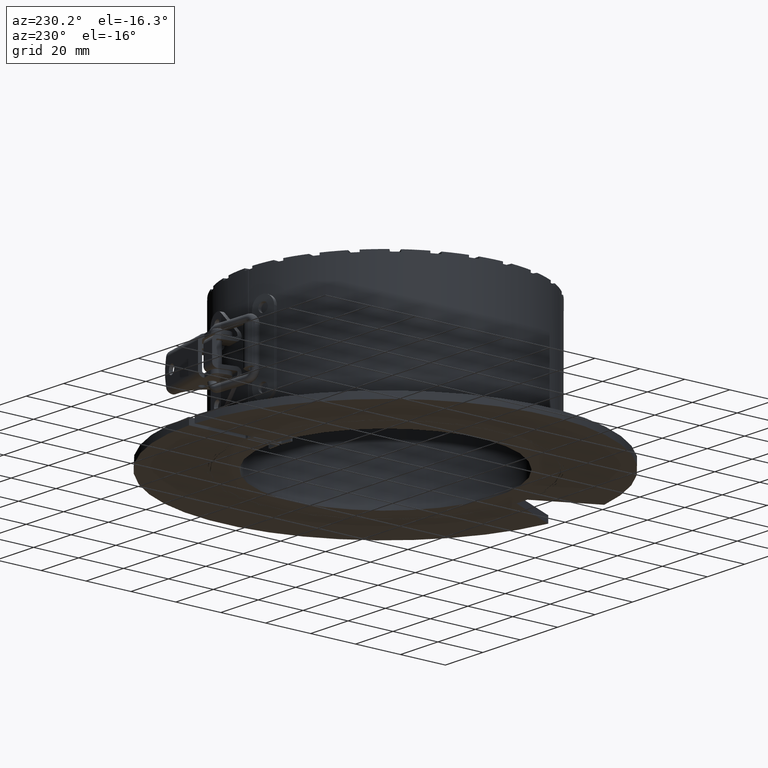
[diagram: clean part render]
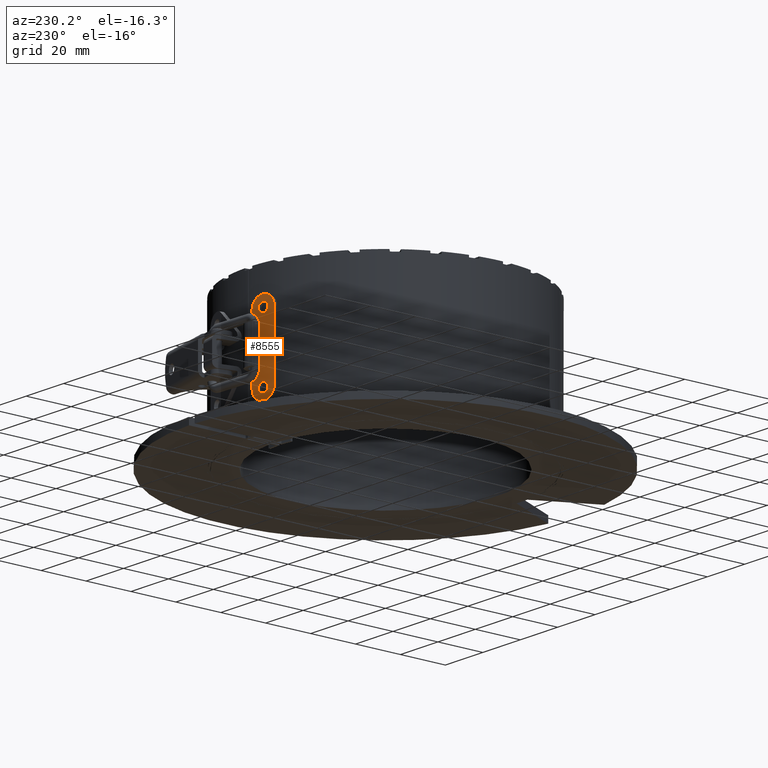
[diagram: same view with one face highlighted and labeled with its STEP entity id]
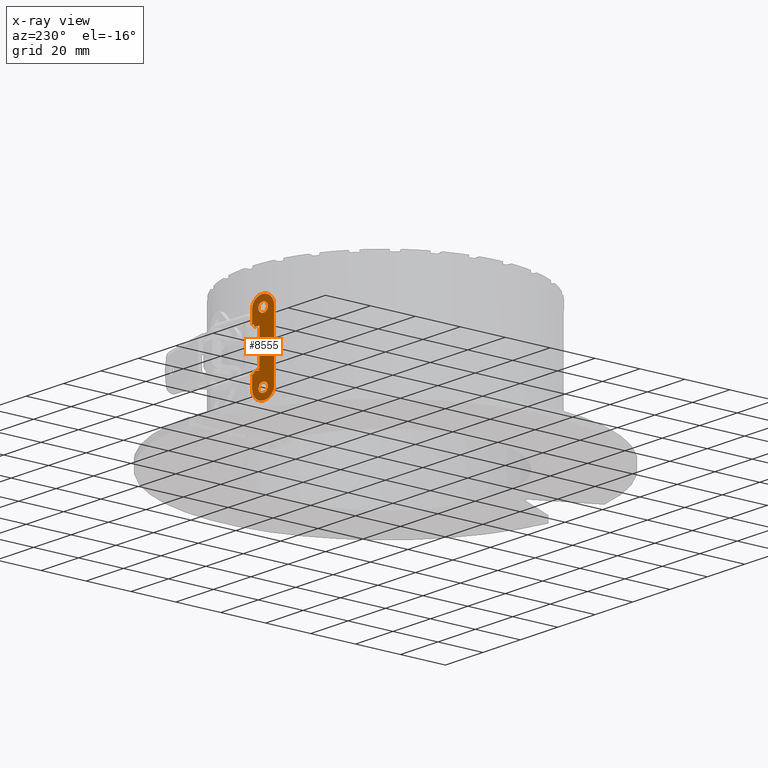
[diagram: x-ray of the same camera — body ghosted, the highlighted face saturated]
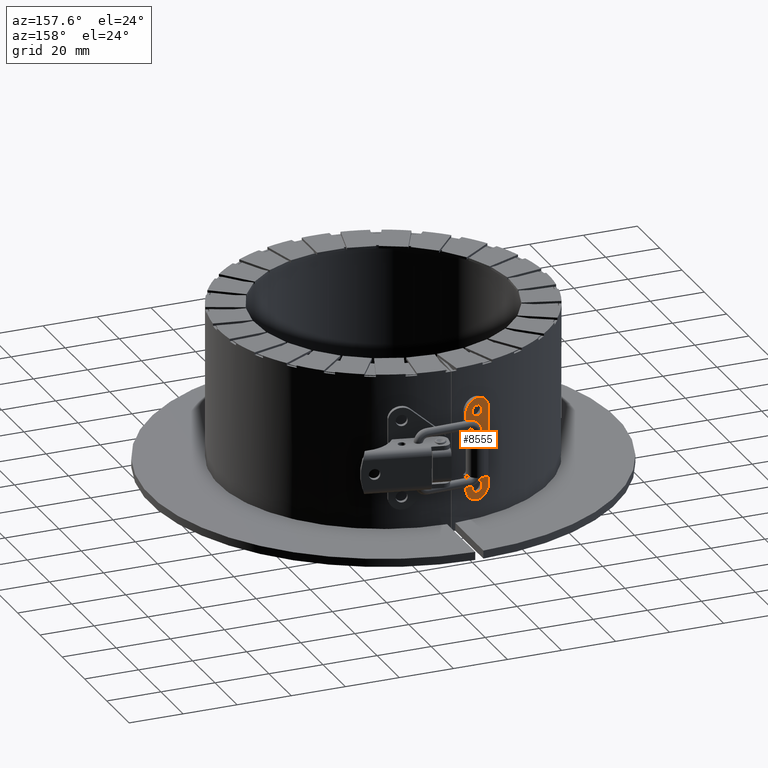
[diagram: same view with one face highlighted and labeled with its STEP entity id]
A machine part, auxiliary view. The second image highlights one B-rep face of the part: STEP entity #8555.
The next image is the same camera in x-ray: the body ghosted, the highlighted face saturated — about 0% of this face is hidden behind the body in this view.
A second angle (auxiliary view) of the same face is appended — the face is thin or edge-on in the first view.
In plain terms, the highlighted planar face has unit normal (-0.2212, 0.9752, 0).
Its self-contained STEP definition (entity closure, byte-faithful):
#8269=CARTESIAN_POINT('',(-4.531906413659216,63.161676311358619,-8.949999999999987));
#8270=VERTEX_POINT('',#8269);
#8271=CARTESIAN_POINT('',(-4.531906413659215,63.161676311358619,-14.29999999999999));
#8272=VERTEX_POINT('',#8271);
#8273=CARTESIAN_POINT('',(-4.531906413659216,63.161676311358619,-8.949999999999987));
#8274=DIRECTION('',(0.0,0.0,-1.0));
#8275=VECTOR('',#8274,5.350000000000003);
#8276=LINE('',#8273,#8275);
#8277=EDGE_CURVE('',#8270,#8272,#8276,.T.);
#8415=CARTESIAN_POINT('',(-13.79668192189243,61.0607396673729,-14.29999999999999));
#8416=VERTEX_POINT('',#8415);
#8423=CARTESIAN_POINT('',(-9.164294167775825,62.111207989365766,-14.29999999999999));
#8424=DIRECTION('',(-0.221151225682707,0.975239527182444,0.0));
#8425=DIRECTION('',(0.0,0.0,-1.0));
#8426=AXIS2_PLACEMENT_3D('',#8423,#8424,#8425);
#8427=CIRCLE('',#8426,4.750000000000002);
#8428=EDGE_CURVE('',#8272,#8416,#8427,.T.);
#8441=CARTESIAN_POINT('',(-5.50714594084166,62.940525085675922,-7.94999999999999));
#8442=VERTEX_POINT('',#8441);
#8443=CARTESIAN_POINT('',(-4.531906413659216,63.161676311358619,-7.94999999999999));
#8444=DIRECTION('',(-0.221151225682707,0.975239527182444,0.0));
#8445=DIRECTION('',(0.0,0.0,-1.0));
#8446=AXIS2_PLACEMENT_3D('',#8443,#8444,#8445);
#8447=CIRCLE('',#8446,0.999999999999999);
#8448=EDGE_CURVE('',#8270,#8442,#8447,.T.);
#8467=CARTESIAN_POINT('',(-9.164294167775825,62.111207989365766,-14.29999999999999));
#8468=DIRECTION('',(-0.221151225682707,0.975239527182444,5.207080E-017));
#8469=DIRECTION('',(0.0,0.0,-1.0));
#8470=AXIS2_PLACEMENT_3D('',#8467,#8468,#8469);
#8471=PLANE('',#8470);
#8472=CARTESIAN_POINT('',(-5.50714594084166,62.940525085675922,7.950000000000008));
#8473=VERTEX_POINT('',#8472);
#8474=CARTESIAN_POINT('',(-7.603910924283913,62.465049950458095,7.950000000000008));
#8475=VERTEX_POINT('',#8474);
#8476=CARTESIAN_POINT('',(-5.50714594084166,62.940525085675922,7.950000000000008));
#8477=DIRECTION('',(-0.975239527182444,-0.221151225682707,0.0));
#8478=VECTOR('',#8477,2.15);
#8479=LINE('',#8476,#8478);
#8480=EDGE_CURVE('',#8473,#8475,#8479,.T.);
#8481=ORIENTED_EDGE('',*,*,#8480,.T.);
#8482=CARTESIAN_POINT('',(-7.603910924283913,62.465049950458095,-7.94999999999999));
#8483=VERTEX_POINT('',#8482);
#8484=CARTESIAN_POINT('',(-7.603910924283913,62.465049950458095,-7.94999999999999));
#8485=DIRECTION('',(0.0,0.0,1.0));
#8486=VECTOR('',#8485,15.9);
#8487=LINE('',#8484,#8486);
#8488=EDGE_CURVE('',#8483,#8475,#8487,.T.);
#8489=ORIENTED_EDGE('',*,*,#8488,.F.);
#8490=CARTESIAN_POINT('',(-7.603910924283913,62.465049950458095,-7.94999999999999));
#8491=DIRECTION('',(0.975239527182444,0.221151225682707,0.0));
#8492=VECTOR('',#8491,2.15);
#8493=LINE('',#8490,#8492);
#8494=EDGE_CURVE('',#8483,#8442,#8493,.T.);
#8495=ORIENTED_EDGE('',*,*,#8494,.T.);
#8496=ORIENTED_EDGE('',*,*,#8448,.F.);
#8497=ORIENTED_EDGE('',*,*,#8277,.T.);
#8498=ORIENTED_EDGE('',*,*,#8428,.T.);
#8499=CARTESIAN_POINT('',(-13.796681921892432,61.0607396673729,14.300000000000006));
#8500=VERTEX_POINT('',#8499);
#8501=CARTESIAN_POINT('',(-13.79668192189243,61.0607396673729,-14.29999999999999));
#8502=DIRECTION('',(0.0,0.0,1.0));
#8503=VECTOR('',#8502,28.600000000000001);
#8504=LINE('',#8501,#8503);
#8505=EDGE_CURVE('',#8416,#8500,#8504,.T.);
#8506=ORIENTED_EDGE('',*,*,#8505,.T.);
#8507=CARTESIAN_POINT('',(-4.531906413659215,63.161676311358619,14.300000000000006));
#8508=VERTEX_POINT('',#8507);
#8509=CARTESIAN_POINT('',(-9.164294167775823,62.111207989365766,14.300000000000006));
#8510=DIRECTION('',(-0.221151225682707,0.975239527182444,0.0));
#8511=DIRECTION('',(0.0,0.0,1.0));
#8512=AXIS2_PLACEMENT_3D('',#8509,#8510,#8511);
#8513=CIRCLE('',#8512,4.750000000000002);
#8514=EDGE_CURVE('',#8500,#8508,#8513,.T.);
#8515=ORIENTED_EDGE('',*,*,#8514,.T.);
#8516=CARTESIAN_POINT('',(-4.531906413659216,63.161676311358619,8.950000000000005));
#8517=VERTEX_POINT('',#8516);
#8518=CARTESIAN_POINT('',(-4.531906413659215,63.161676311358619,14.300000000000006));
#8519=DIRECTION('',(0.0,0.0,-1.0));
#8520=VECTOR('',#8519,5.350000000000003);
#8521=LINE('',#8518,#8520);
#8522=EDGE_CURVE('',#8508,#8517,#8521,.T.);
#8523=ORIENTED_EDGE('',*,*,#8522,.T.);
#8524=CARTESIAN_POINT('',(-4.531906413659216,63.161676311358619,7.950000000000008));
#8525=DIRECTION('',(-0.221151225682707,0.975239527182444,0.0));
#8526=DIRECTION('',(0.0,0.0,-1.0));
#8527=AXIS2_PLACEMENT_3D('',#8524,#8525,#8526);
#8528=CIRCLE('',#8527,1.0);
#8529=EDGE_CURVE('',#8473,#8517,#8528,.T.);
#8530=ORIENTED_EDGE('',*,*,#8529,.F.);
#8531=EDGE_LOOP('',(#8481,#8489,#8495,#8496,#8497,#8498,#8506,#8515,#8523,#8530));
#8532=FACE_OUTER_BOUND('',#8531,.T.);
#8533=CARTESIAN_POINT('',(-9.164294167775825,62.111207989365766,-12.249999999999993));
#8534=VERTEX_POINT('',#8533);
#8535=CARTESIAN_POINT('',(-9.164294167775825,62.111207989365766,-14.29999999999999));
#8536=DIRECTION('',(-0.221151225682707,0.975239527182444,0.0));
#8537=DIRECTION('',(0.0,0.0,-1.0));
#8538=AXIS2_PLACEMENT_3D('',#8535,#8536,#8537);
#8539=CIRCLE('',#8538,2.05);
#8540=EDGE_CURVE('',#8534,#8534,#8539,.T.);
#8541=ORIENTED_EDGE('',*,*,#8540,.F.);
#8542=EDGE_LOOP('',(#8541));
#8543=FACE_BOUND('',#8542,.T.);
#8544=CARTESIAN_POINT('',(-9.164294167775823,62.111207989365766,16.350000000000009));
#8545=VERTEX_POINT('',#8544);
#8546=CARTESIAN_POINT('',(-9.164294167775823,62.111207989365766,14.300000000000006));
#8547=DIRECTION('',(-0.221151225682707,0.975239527182444,0.0));
#8548=DIRECTION('',(0.0,0.0,-1.0));
#8549=AXIS2_PLACEMENT_3D('',#8546,#8547,#8548);
#8550=CIRCLE('',#8549,2.05);
#8551=EDGE_CURVE('',#8545,#8545,#8550,.T.);
#8552=ORIENTED_EDGE('',*,*,#8551,.F.);
#8553=EDGE_LOOP('',(#8552));
#8554=FACE_BOUND('',#8553,.T.);
#8555=ADVANCED_FACE('',(#8532,#8543,#8554),#8471,.T.);